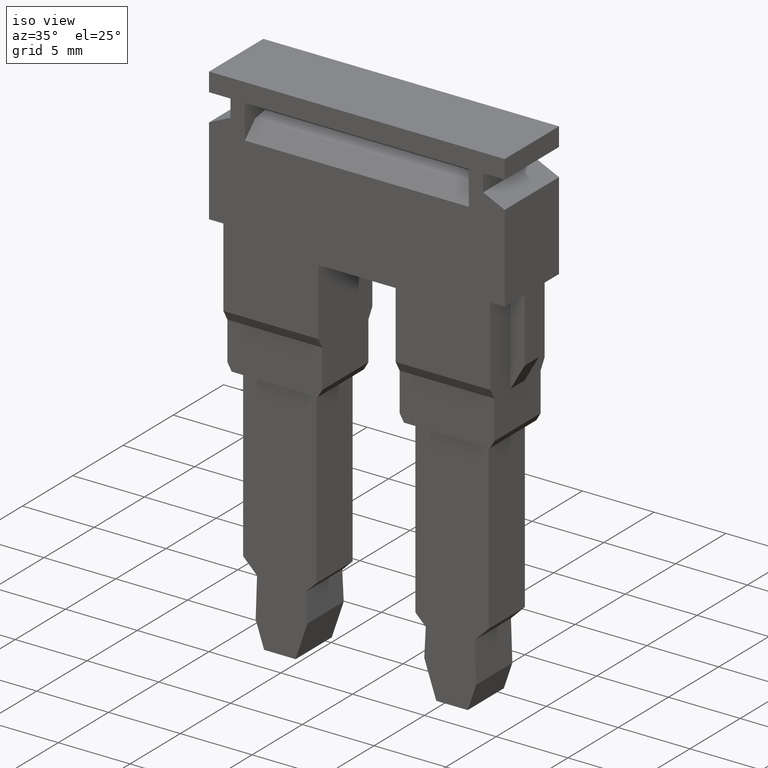
[diagram: clean part render]
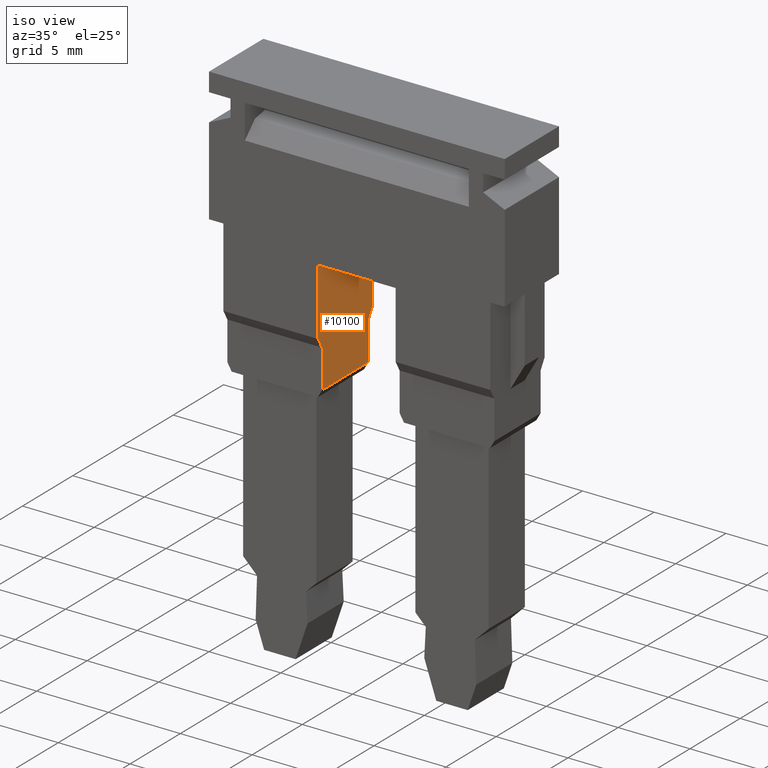
[diagram: same view with one face highlighted and labeled with its STEP entity id]
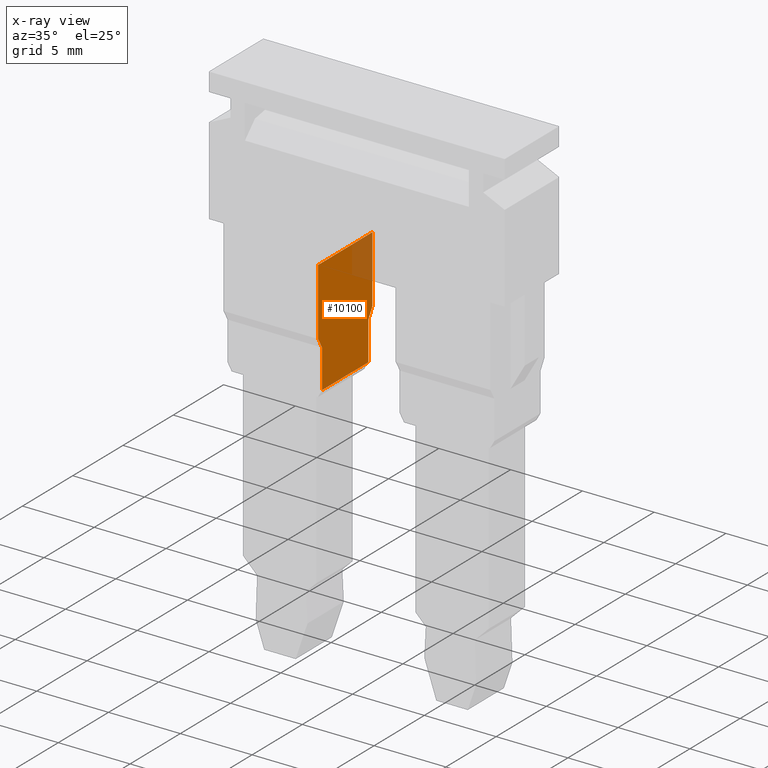
[diagram: x-ray of the same camera — body ghosted, the highlighted face saturated]
A machine part, iso view. The second image highlights one B-rep face of the part: STEP entity #10100.
The next image is the same camera in x-ray: the body ghosted, the highlighted face saturated — about 12% of this face is hidden behind the body in this view.
In plain terms, the highlighted planar face has unit normal (1, 0, 0).
Its self-contained STEP definition (entity closure, byte-faithful):
#620=CARTESIAN_POINT('',(-7.15000000000002,30.6888475213276,
-0.799999999999989));
#630=VERTEX_POINT('',#620);
#660=CARTESIAN_POINT('',(-7.15000000000002,26.7540884716326,
-0.799999999999989));
#670=DIRECTION('',(0.,-1.,0.));
#680=VECTOR('',#670,1.);
#690=LINE('',#660,#680);
#700=CARTESIAN_POINT('',(-7.15000000000002,35.3460271983001,
-0.799999999999989));
#710=VERTEX_POINT('',#700);
#720=EDGE_CURVE('',#710,#630,#690,.T.);
#2210=CARTESIAN_POINT('',(-12.15,27.3156424405707,-0.799999999999989));
#2220=VERTEX_POINT('',#2210);
#2530=CARTESIAN_POINT('',(-12.15,29.9960271983001,-0.799999999999989));
#2540=VERTEX_POINT('',#2530);
#2570=CARTESIAN_POINT('',(-12.15,26.7540884716326,-0.799999999999989));
#2580=DIRECTION('',(0.,-1.,0.));
#2590=VECTOR('',#2580,1.);
#2600=LINE('',#2570,#2590);
#2610=EDGE_CURVE('',#2540,#2220,#2600,.T.);
#9310=CARTESIAN_POINT('',(-10.2782658034623,26.7540884716326,
-0.799999999999988));
#9320=DIRECTION('',(-0.5,0.866025403784439,0.));
#9330=VECTOR('',#9320,1.);
#9340=LINE('',#9310,#9330);
#9350=CARTESIAN_POINT('',(-12.55,30.6888475213276,-0.799999999999989));
#9360=VERTEX_POINT('',#9350);
#9370=EDGE_CURVE('',#2540,#9360,#9340,.T.);
#9640=CARTESIAN_POINT('',(-7.55000000000001,29.9290399001785,
-0.799999999999989));
#9650=DIRECTION('',(-0.,0.,1.));
#9660=DIRECTION('',(0.,-1.,0.));
#9670=AXIS2_PLACEMENT_3D('',#9640,#9650,#9660);
#9680=PLANE('',#9670);
#9690=ORIENTED_EDGE('',*,*,#2610,.T.);
#9700=ORIENTED_EDGE('',*,*,#9370,.F.);
#9710=CARTESIAN_POINT('',(-12.55,26.7540884716326,-0.799999999999989));
#9720=DIRECTION('',(0.,1.,0.));
#9730=VECTOR('',#9720,1.);
#9740=LINE('',#9710,#9730);
#9750=CARTESIAN_POINT('',(-12.55,35.3460271983001,-0.799999999999989));
#9760=VERTEX_POINT('',#9750);
#9770=EDGE_CURVE('',#9360,#9760,#9740,.T.);
#9780=ORIENTED_EDGE('',*,*,#9770,.F.);
#9790=CARTESIAN_POINT('',(-10.9510893734794,35.3460271983001,
-0.799999999999989));
#9800=DIRECTION('',(1.,0.,0.));
#9810=VECTOR('',#9800,1.);
#9820=LINE('',#9790,#9810);
#9830=EDGE_CURVE('',#9760,#710,#9820,.T.);
#9840=ORIENTED_EDGE('',*,*,#9830,.F.);
#9850=ORIENTED_EDGE('',*,*,#720,.F.);
#9860=CARTESIAN_POINT('',(-9.42173419653775,26.7540884716326,
-0.799999999999988));
#9870=DIRECTION('',(-0.5,-0.866025403784439,0.));
#9880=VECTOR('',#9870,1.);
#9890=LINE('',#9860,#9880);
#9900=CARTESIAN_POINT('',(-7.55000000000001,29.9960271983001,
-0.799999999999989));
#9910=VERTEX_POINT('',#9900);
#9920=EDGE_CURVE('',#630,#9910,#9890,.T.);
#9930=ORIENTED_EDGE('',*,*,#9920,.F.);
#9940=CARTESIAN_POINT('',(-7.55000000000001,26.7540884716326,
-0.799999999999989));
#9950=DIRECTION('',(0.,-1.,0.));
#9960=VECTOR('',#9950,1.);
#9970=LINE('',#9940,#9960);
#9980=CARTESIAN_POINT('',(-7.55000000000001,27.3156424405707,
-0.799999999999989));
#9990=VERTEX_POINT('',#9980);
#10000=EDGE_CURVE('',#9910,#9990,#9970,.T.);
#10010=ORIENTED_EDGE('',*,*,#10000,.F.);
#10020=CARTESIAN_POINT('',(-10.9510893734794,27.3156424405707,
-0.799999999999989));
#10030=DIRECTION('',(1.,0.,0.));
#10040=VECTOR('',#10030,1.);
#10050=LINE('',#10020,#10040);
#10060=EDGE_CURVE('',#2220,#9990,#10050,.T.);
#10070=ORIENTED_EDGE('',*,*,#10060,.T.);
#10080=EDGE_LOOP('',(#10070,#10010,#9930,#9850,#9840,#9780,#9700,#9690))
;
#10090=FACE_OUTER_BOUND('',#10080,.T.);
#10100=ADVANCED_FACE('',(#10090),#9680,.T.);